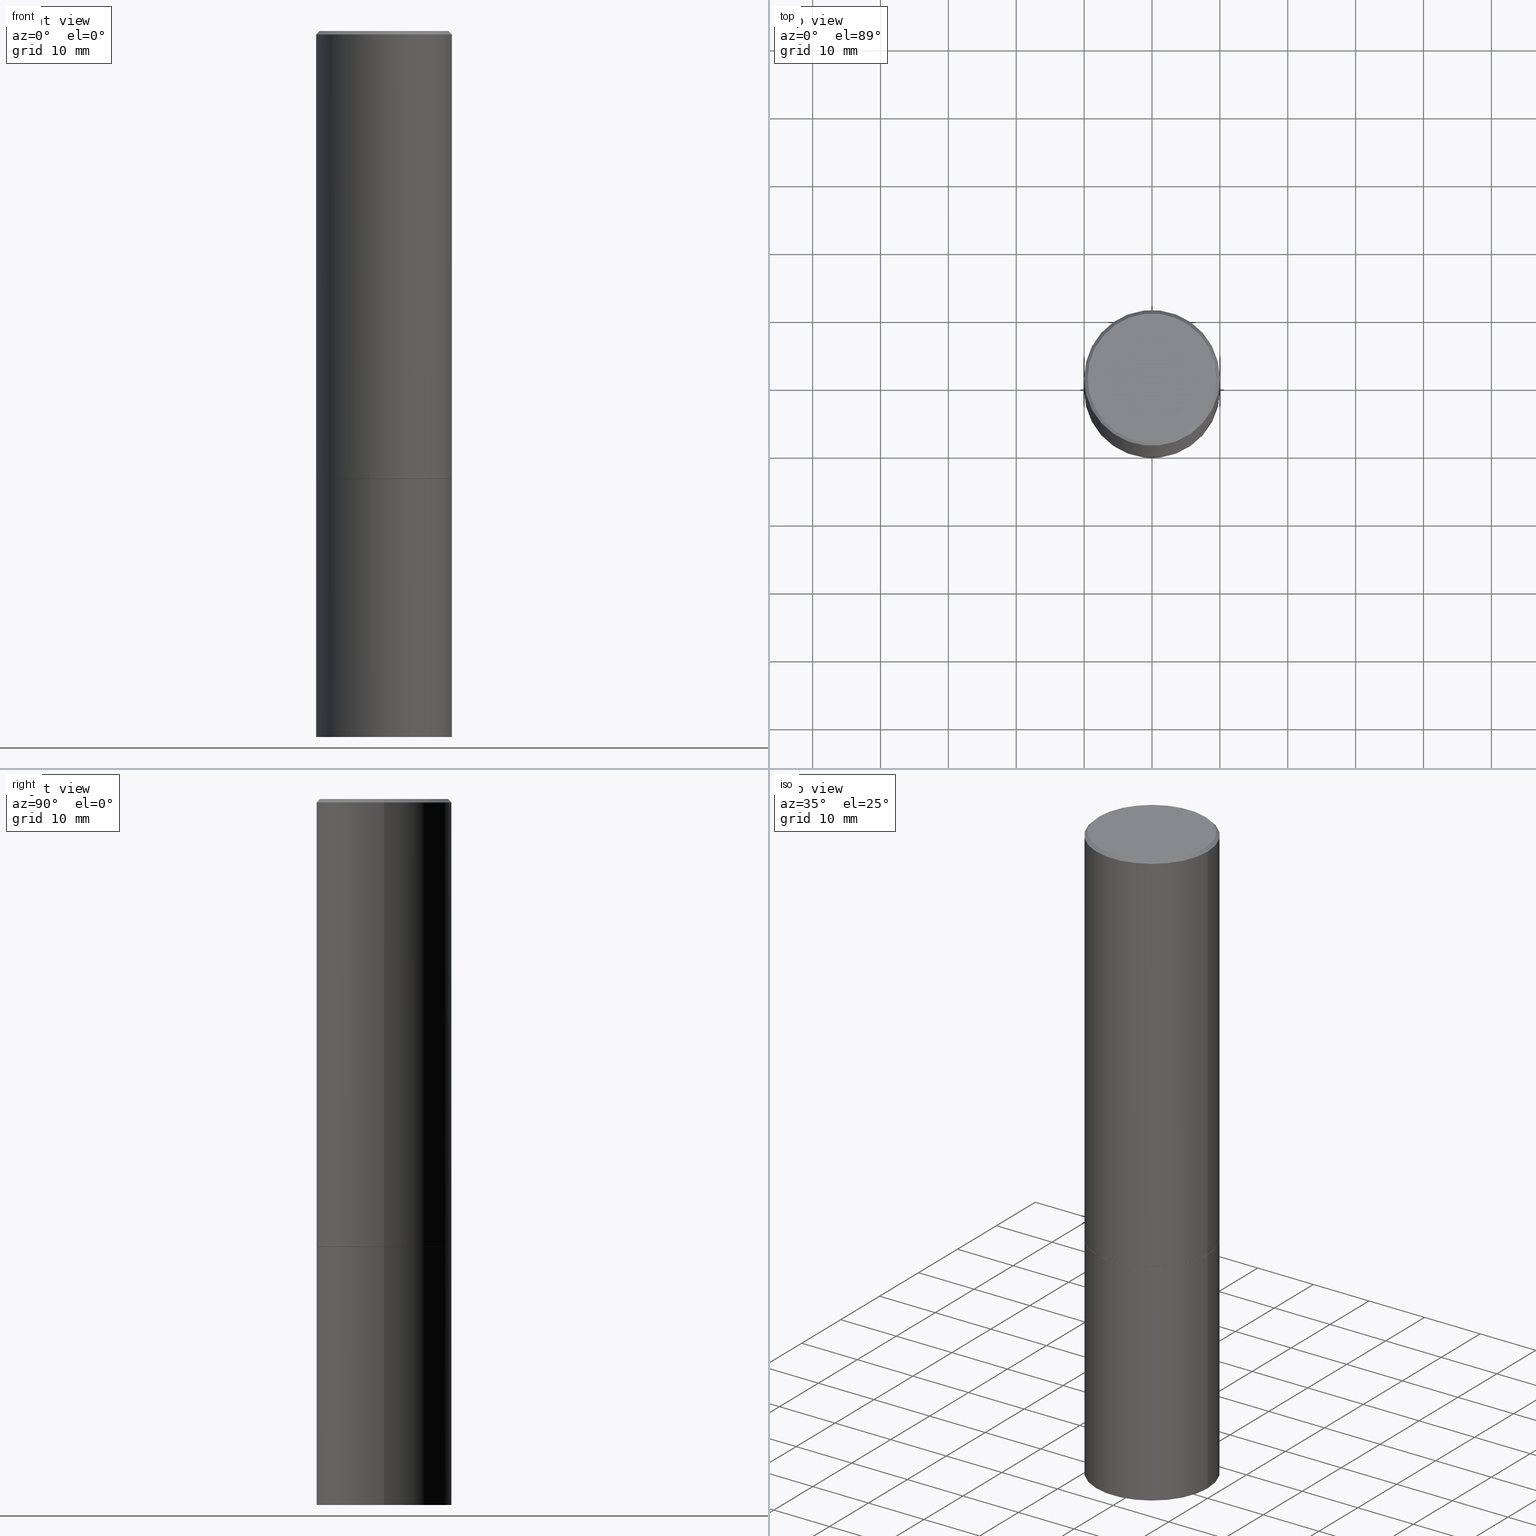
[diagram: canonical four-view strip — front | top / right | iso, engineering-drawing reading convention]
A machine part, canonical four-view strip (front | top / right | iso — engineering-drawing reading convention). The complete STEP part file that produces these views, byte-faithful:
ISO-10303-21;
HEADER;
FILE_DESCRIPTION (( 'STEP AP203' ),
    '1' );
FILE_NAME ('45500.STEP',
    '2024-02-28T10:00:57',
    ( '' ),
    ( '' ),
    'SwSTEP 2.0',
    'SolidWorks 2023',
    '' );
FILE_SCHEMA (( 'CONFIG_CONTROL_DESIGN' ));
ENDSEC;

DATA;
#1 = FACE_OUTER_BOUND ( 'NONE', #214, .T. ) ;
#2 = ADVANCED_FACE ( 'NONE', ( #48 ), #5, .T. ) ;
#3 = VECTOR ( 'NONE', #78, 39.37007874015748143 ) ;
#4 = DIRECTION ( 'NONE',  ( -1.000000000000000000, 6.982962677686265922E-15, -4.876176775795935793E-29 ) ) ;
#5 = CYLINDRICAL_SURFACE ( 'NONE', #338, 0.3937000000000000499 ) ;
#6 = CARTESIAN_POINT ( 'NONE',  ( 0.000000000000000000, 0.000000000000000000, 0.000000000000000000 ) ) ;
#7 = CC_DESIGN_DATE_AND_TIME_ASSIGNMENT ( #116, #31, ( #220 ) ) ;
#8 = CONICAL_SURFACE ( 'NONE', #310, 0.3926999999999999935, 0.7853981633980972044 ) ;
#9 = DIRECTION ( 'NONE',  ( -0.7071067811865466846, 2.468850131082247989E-15, -0.7071067811865483499 ) ) ;
#10 = VERTEX_POINT ( 'NONE', #152 ) ;
#11 = MECHANICAL_CONTEXT ( 'NONE', #353, 'mechanical' ) ;
#12 = DIRECTION ( 'NONE',  ( -2.445468806185136597E-29, 3.491481338843145583E-15, 1.000000000000000000 ) ) ;
#13 = DIRECTION ( 'NONE',  ( 1.000000000000000000, -6.982962677686265922E-15, 4.876176775795935793E-29 ) ) ;
#14 = EDGE_CURVE ( 'NONE', #320, #329, #333, .T. ) ;
#15 = DIRECTION ( 'NONE',  ( 2.445468806185136597E-29, -3.491481338843145583E-15, -1.000000000000000000 ) ) ;
#16 = CARTESIAN_POINT ( 'NONE',  ( 4.890937612370298557E-31, -6.982962677686327354E-17, -0.02000000000000010103 ) ) ;
#17 = APPROVAL ( #204, 'UNSPECIFIED' ) ;
#18 = AXIS2_PLACEMENT_3D ( 'NONE', #238, #50, #163 ) ;
#19 = CARTESIAN_POINT ( 'NONE',  ( -0.3937000000000000499, -8.886660975684131482E-15, -4.094500000000000028 ) ) ;
#20 = ORIENTED_EDGE ( 'NONE', *, *, #274, .T. ) ;
#21 = ADVANCED_FACE ( 'NONE', ( #69 ), #327, .T. ) ;
#22 = ADVANCED_FACE ( 'NONE', ( #223 ), #229, .F. ) ;
#23 = CARTESIAN_POINT ( 'NONE',  ( 0.000000000000000000, 0.000000000000000000, 0.000000000000000000 ) ) ;
#24 = AXIS2_PLACEMENT_3D ( 'NONE', #16, #133, #105 ) ;
#25 = CONICAL_SURFACE ( 'NONE', #195, 0.3926999999999999935, 0.7853981633980972044 ) ;
#26 = DATE_AND_TIME ( #81, #59 ) ;
#27 = ORIENTED_EDGE ( 'NONE', *, *, #75, .F. ) ;
#28 = ADVANCED_FACE ( 'NONE', ( #192 ), #46, .T. ) ;
#29 = PERSON_AND_ORGANIZATION_ROLE ( 'creator' ) ;
#30 = VERTEX_POINT ( 'NONE', #287 ) ;
#31 = DATE_TIME_ROLE ( 'classification_date' ) ;
#32 = EDGE_LOOP ( 'NONE', ( #42, #56 ) ) ;
#33 = VERTEX_POINT ( 'NONE', #111 ) ;
#34 = CARTESIAN_POINT ( 'NONE',  ( 6.351860677185276395E-29, -9.068773629511191193E-15, -2.597400000000001263 ) ) ;
#35 = CARTESIAN_POINT ( 'NONE',  ( 6.354306145991457514E-29, -9.072265110850029467E-15, -2.598399999999999821 ) ) ;
#36 = LOCAL_TIME ( 5, 0, 57.00000000000000000, #110 ) ;
#37 = EDGE_CURVE ( 'NONE', #177, #131, #101, .T. ) ;
#38 = DIRECTION ( 'NONE',  ( -1.000000000000000000, 6.982962677686265922E-15, -4.876176775795935793E-29 ) ) ;
#39 = DIRECTION ( 'NONE',  ( -1.000000000000000000, 6.982962677686266711E-15, 0.000000000000000000 ) ) ;
#40 = CC_DESIGN_SECURITY_CLASSIFICATION ( #220, ( #103 ) ) ;
#41 = CARTESIAN_POINT ( 'NONE',  ( 0.000000000000000000, 0.000000000000000000, 0.000000000000000000 ) ) ;
#42 = ORIENTED_EDGE ( 'NONE', *, *, #37, .T. ) ;
#43 = DIRECTION ( 'NONE',  ( -2.445468806185136877E-29, 3.491481338843145188E-15, 1.000000000000000000 ) ) ;
#44 = EDGE_CURVE ( 'NONE', #33, #10, #89, .T. ) ;
#45 = LINE ( 'NONE', #237, #248 ) ;
#46 = CYLINDRICAL_SURFACE ( 'NONE', #129, 0.3936999999999998279 ) ;
#47 = DIRECTION ( 'NONE',  ( -2.445468806185136597E-29, 3.491481338843145583E-15, 1.000000000000000000 ) ) ;
#48 = FACE_OUTER_BOUND ( 'NONE', #269, .T. ) ;
#49 = DIRECTION ( 'NONE',  ( 1.000000000000000000, -6.982962677686266711E-15, 4.876176775795935793E-29 ) ) ;
#50 = DIRECTION ( 'NONE',  ( -2.445468806185136597E-29, 3.491481338843145583E-15, 1.000000000000000000 ) ) ;
#51 = PERSON_AND_ORGANIZATION ( #224, #260 ) ;
#52 = AXIS2_PLACEMENT_3D ( 'NONE', #258, #311, #283 ) ;
#53 = PERSON_AND_ORGANIZATION_ROLE ( 'design_supplier' ) ;
#54 = EDGE_LOOP ( 'NONE', ( #58, #159, #146, #272 ) ) ;
#55 = COORDINATED_UNIVERSAL_TIME_OFFSET ( 5, 0, .BEHIND. ) ;
#56 = ORIENTED_EDGE ( 'NONE', *, *, #345, .T. ) ;
#57 = DATE_AND_TIME ( #176, #36 ) ;
#58 = ORIENTED_EDGE ( 'NONE', *, *, #284, .F. ) ;
#59 = LOCAL_TIME ( 5, 0, 57.00000000000000000, #174 ) ;
#60 = AXIS2_PLACEMENT_3D ( 'NONE', #77, #323, #352 ) ;
#61 = ORIENTED_EDGE ( 'NONE', *, *, #270, .F. ) ;
#62 = CARTESIAN_POINT ( 'NONE',  ( 0.3937000000000000499, -1.182145751705511584E-14, -2.598400000000000265 ) ) ;
#63 = DIMENSIONAL_EXPONENTS ( 1.000000000000000000, 0.000000000000000000, 0.000000000000000000, 0.000000000000000000, 0.000000000000000000, 0.000000000000000000, 0.000000000000000000 ) ;
#64 = CARTESIAN_POINT ( 'NONE',  ( -0.3736999999999996436, 2.644447966039786297E-15, 8.537024980182450727E-18 ) ) ;
#65 = DIRECTION ( 'NONE',  ( -2.445468806185136597E-29, 3.491481338843145583E-15, 1.000000000000000000 ) ) ;
#66 = CC_DESIGN_PERSON_AND_ORGANIZATION_ASSIGNMENT ( #198, #29, ( #103 ) ) ;
#67 = DIRECTION ( 'NONE',  ( -2.438088387897960049E-29, 3.491481338843145188E-15, 1.000000000000000000 ) ) ;
#68 = AXIS2_PLACEMENT_3D ( 'NONE', #130, #65, #340 ) ;
#69 = FACE_OUTER_BOUND ( 'NONE', #354, .T. ) ;
#70 = CIRCLE ( 'NONE', #60, 0.3937000000000000499 ) ;
#71 = CARTESIAN_POINT ( 'NONE',  ( -2.087702828670439639E-46, 2.980686340760894400E-32, 8.537024980200822558E-18 ) ) ;
#72 = PLANE ( 'NONE',  #179 ) ;
#73 = EDGE_CURVE ( 'NONE', #113, #33, #241, .T. ) ;
#74 =( NAMED_UNIT ( * ) SI_UNIT ( $, .STERADIAN. ) SOLID_ANGLE_UNIT ( ) );
#75 = EDGE_CURVE ( 'NONE', #329, #320, #324, .T. ) ;
#76 = DIRECTION ( 'NONE',  ( -2.445468806185136597E-29, 3.491481338843145583E-15, 1.000000000000000000 ) ) ;
#77 = CARTESIAN_POINT ( 'NONE',  ( 6.354306145991459756E-29, -9.072265110850031044E-15, -2.598400000000000265 ) ) ;
#78 = DIRECTION ( 'NONE',  ( -2.445468806185136877E-29, 3.491481338843145188E-15, 1.000000000000000000 ) ) ;
#79 = DIRECTION ( 'NONE',  ( -1.000000000000000000, 6.982962677686265922E-15, -4.876176775795935793E-29 ) ) ;
#80 = EDGE_CURVE ( 'NONE', #166, #201, #188, .T. ) ;
#81 = CALENDAR_DATE ( 2024, 28, 2 ) ;
#82 = APPLICATION_PROTOCOL_DEFINITION ( 'international standard', 'config_control_design', 1994, #315 ) ;
#83 = ADVANCED_FACE ( 'NONE', ( #183 ), #344, .F. ) ;
#84 = ORIENTED_EDGE ( 'NONE', *, *, #14, .T. ) ;
#85 = ADVANCED_BREP_SHAPE_REPRESENTATION ( '45500', ( #217, #322, #173 ), #136 ) ;
#86 = EDGE_CURVE ( 'NONE', #30, #113, #181, .T. ) ;
#87 = APPROVAL_DATE_TIME ( #230, #234 ) ;
#88 = EDGE_LOOP ( 'NONE', ( #301, #364, #168, #206 ) ) ;
#89 = CIRCLE ( 'NONE', #24, 0.3936999999999996613 ) ;
#90 = COORDINATED_UNIVERSAL_TIME_OFFSET ( 5, 0, .BEHIND. ) ;
#91 = ORIENTED_EDGE ( 'NONE', *, *, #339, .T. ) ;
#92 = PRODUCT_DEFINITION_SHAPE ( 'NONE', 'NONE',  #115 ) ;
#93 = SHAPE_DEFINITION_REPRESENTATION ( #92, #85 ) ;
#94 = EDGE_CURVE ( 'NONE', #10, #33, #218, .T. ) ;
#95 = EDGE_CURVE ( 'NONE', #276, #10, #341, .T. ) ;
#96 = EDGE_LOOP ( 'NONE', ( #84, #222, #249, #144 ) ) ;
#97 = CARTESIAN_POINT ( 'NONE',  ( -0.3937000000000000499, 2.797406750687514786E-15, -1.936584745033356735E-29 ) ) ;
#98 = EDGE_CURVE ( 'NONE', #30, #166, #292, .T. ) ;
#99 = CARTESIAN_POINT ( 'NONE',  ( -0.3926999999999999935, -6.276665333171897231E-15, -2.598399999999999821 ) ) ;
#100 = DIRECTION ( 'NONE',  ( 2.438088387897960049E-29, -3.491481338843145188E-15, -1.000000000000000000 ) ) ;
#101 = CIRCLE ( 'NONE', #18, 0.3937000000000000499 ) ;
#102 = DIRECTION ( 'NONE',  ( -2.445468806185136597E-29, 3.491481338843145583E-15, 1.000000000000000000 ) ) ;
#103 = PRODUCT_DEFINITION_FORMATION_WITH_SPECIFIED_SOURCE ( 'ANY', '', #124, .NOT_KNOWN. ) ;
#104 = DIRECTION ( 'NONE',  ( -2.445468806185136597E-29, 3.491481338843145583E-15, 1.000000000000000000 ) ) ;
#105 = DIRECTION ( 'NONE',  ( 1.000000000000000000, -6.982962677686266711E-15, 0.000000000000000000 ) ) ;
#106 = PRODUCT_RELATED_PRODUCT_CATEGORY ( 'detail', '', ( #124 ) ) ;
#107 = DIRECTION ( 'NONE',  ( 0.000000000000000000, 0.000000000000000000, 1.000000000000000000 ) ) ;
#108 = CARTESIAN_POINT ( 'NONE',  ( 1.001297202692504215E-28, -1.429587034189326149E-14, -4.094500000000000028 ) ) ;
#109 = CIRCLE ( 'NONE', #141, 0.3736999999999996436 ) ;
#110 = COORDINATED_UNIVERSAL_TIME_OFFSET ( 5, 0, .BEHIND. ) ;
#111 = CARTESIAN_POINT ( 'NONE',  ( 0.3936999999999996613, -2.770807688499512973E-15, -0.02000000000000010103 ) ) ;
#112 = EDGE_CURVE ( 'NONE', #320, #177, #281, .T. ) ;
#113 = VERTEX_POINT ( 'NONE', #342 ) ;
#114 = UNCERTAINTY_MEASURE_WITH_UNIT (LENGTH_MEASURE( 1.000000000000000082E-05 ), #290, 'distance_accuracy_value', 'NONE');
#115 = PRODUCT_DEFINITION ( 'UNKNOWN', '', #103, #171 ) ;
#116 = DATE_AND_TIME ( #271, #259 ) ;
#117 = ORIENTED_EDGE ( 'NONE', *, *, #142, .F. ) ;
#118 = DIRECTION ( 'NONE',  ( 1.000000000000000000, -6.982962677686266711E-15, 4.876176775795935793E-29 ) ) ;
#119 = APPROVAL_ROLE ( '' ) ;
#120 = VERTEX_POINT ( 'NONE', #153 ) ;
#121 = CC_DESIGN_APPROVAL ( #234, ( #220 ) ) ;
#122 = DATE_TIME_ROLE ( 'creation_date' ) ;
#123 = ORIENTED_EDGE ( 'NONE', *, *, #98, .F. ) ;
#124 = PRODUCT ( '45500', '45500', '', ( #11 ) ) ;
#125 = DIRECTION ( 'NONE',  ( 1.000000000000000000, -6.982962677686267499E-15, 0.000000000000000000 ) ) ;
#126 = EDGE_CURVE ( 'NONE', #166, #30, #231, .T. ) ;
#127 = CARTESIAN_POINT ( 'NONE',  ( -0.3937000000000000499, -8.886660975684131482E-15, -2.598400000000000265 ) ) ;
#128 = DIRECTION ( 'NONE',  ( 1.000000000000000000, -6.982962677686265922E-15, 4.876176775795935793E-29 ) ) ;
#129 = AXIS2_PLACEMENT_3D ( 'NONE', #23, #12, #49 ) ;
#130 = CARTESIAN_POINT ( 'NONE',  ( 6.351860677185276395E-29, -9.068773629511191193E-15, -2.597400000000001263 ) ) ;
#131 = VERTEX_POINT ( 'NONE', #127 ) ;
#132 = CARTESIAN_POINT ( 'NONE',  ( 4.890937612370298557E-31, -6.982962677686327354E-17, -0.02000000000000010103 ) ) ;
#133 = DIRECTION ( 'NONE',  ( -2.445468806185136597E-29, 3.491481338843145583E-15, 1.000000000000000000 ) ) ;
#134 = APPROVAL ( #358, 'UNSPECIFIED' ) ;
#135 = VECTOR ( 'NONE', #9, 39.37007874015748143 ) ;
#136 =( GEOMETRIC_REPRESENTATION_CONTEXT ( 3 ) GLOBAL_UNCERTAINTY_ASSIGNED_CONTEXT ( ( #114 ) ) GLOBAL_UNIT_ASSIGNED_CONTEXT ( ( #290, #347, #74 ) ) REPRESENTATION_CONTEXT ( 'NONE', 'WORKASPACE' ) );
#137 = EDGE_CURVE ( 'NONE', #201, #113, #156, .T. ) ;
#138 = LENGTH_MEASURE_WITH_UNIT ( LENGTH_MEASURE( 0.02539999999999999897 ), #215 );
#139 = CALENDAR_DATE ( 2024, 28, 2 ) ;
#140 = DIRECTION ( 'NONE',  ( 1.000000000000000000, -6.982962677686267499E-15, 0.000000000000000000 ) ) ;
#141 = AXIS2_PLACEMENT_3D ( 'NONE', #158, #318, #162 ) ;
#142 = EDGE_CURVE ( 'NONE', #329, #131, #233, .T. ) ;
#143 = PERSON_AND_ORGANIZATION ( #224, #260 ) ;
#144 = ORIENTED_EDGE ( 'NONE', *, *, #112, .F. ) ;
#145 = PERSON_AND_ORGANIZATION_ROLE ( 'creator' ) ;
#146 = ORIENTED_EDGE ( 'NONE', *, *, #73, .T. ) ;
#147 = ORIENTED_EDGE ( 'NONE', *, *, #44, .T. ) ;
#148 = ORIENTED_EDGE ( 'NONE', *, *, #270, .T. ) ;
#149 = DIRECTION ( 'NONE',  ( -2.445468806185136597E-29, 3.491481338843145583E-15, 1.000000000000000000 ) ) ;
#150 = CARTESIAN_POINT ( 'NONE',  ( 6.354306145991457514E-29, -9.072265110850029467E-15, -2.598399999999999821 ) ) ;
#151 = CC_DESIGN_APPROVAL ( #17, ( #115 ) ) ;
#152 = CARTESIAN_POINT ( 'NONE',  ( -0.3936999999999996613, 2.679362779428217552E-15, -0.02000000000000010103 ) ) ;
#153 = CARTESIAN_POINT ( 'NONE',  ( 0.3736999999999996436, -2.667287895133365992E-15, 8.537024980219274507E-18 ) ) ;
#154 = DIRECTION ( 'NONE',  ( -2.445468806185136597E-29, 3.491481338843145583E-15, 1.000000000000000000 ) ) ;
#155 = DIRECTION ( 'NONE',  ( -2.445468806185136597E-29, 3.491481338843145583E-15, 1.000000000000000000 ) ) ;
#156 = CIRCLE ( 'NONE', #68, 0.3937000000000000499 ) ;
#157 = CARTESIAN_POINT ( 'NONE',  ( 1.001297202692504215E-28, -1.429587034189326149E-14, -4.094500000000000028 ) ) ;
#158 = CARTESIAN_POINT ( 'NONE',  ( -2.087702828670439639E-46, 2.980686340760894400E-32, 8.537024980200822558E-18 ) ) ;
#159 = ORIENTED_EDGE ( 'NONE', *, *, #137, .T. ) ;
#160 = FACE_OUTER_BOUND ( 'NONE', #32, .T. ) ;
#161 = EDGE_LOOP ( 'NONE', ( #123, #246 ) ) ;
#162 = DIRECTION ( 'NONE',  ( 1.000000000000000000, -6.982962677686266711E-15, 4.876212485538980163E-29 ) ) ;
#163 = DIRECTION ( 'NONE',  ( 1.000000000000000000, -6.982962677686267499E-15, 0.000000000000000000 ) ) ;
#164 = ADVANCED_FACE ( 'NONE', ( #1 ), #72, .T. ) ;
#165 = CONICAL_SURFACE ( 'NONE', #298, 0.3936999999999996613, 0.7853981633974471688 ) ;
#166 = VERTEX_POINT ( 'NONE', #99 ) ;
#167 = PLANE ( 'NONE',  #200 ) ;
#168 = ORIENTED_EDGE ( 'NONE', *, *, #274, .F. ) ;
#169 = FACE_OUTER_BOUND ( 'NONE', #175, .T. ) ;
#170 = DIRECTION ( 'NONE',  ( -2.445468806185136597E-29, 3.491481338843145583E-15, 1.000000000000000000 ) ) ;
#171 = DESIGN_CONTEXT ( 'detailed design', #315, 'design' ) ;
#172 = CLOSED_SHELL ( 'NONE', ( #295, #21, #266, #319, #28, #366, #22, #83 ) ) ;
#173 = AXIS2_PLACEMENT_3D ( 'NONE', #41, #107, #190 ) ;
#174 = COORDINATED_UNIVERSAL_TIME_OFFSET ( 5, 0, .BEHIND. ) ;
#175 = EDGE_LOOP ( 'NONE', ( #180, #286, #360, #297 ) ) ;
#176 = CALENDAR_DATE ( 2024, 28, 2 ) ;
#177 = VERTEX_POINT ( 'NONE', #62 ) ;
#178 = APPROVAL_DATE_TIME ( #57, #134 ) ;
#179 = AXIS2_PLACEMENT_3D ( 'NONE', #255, #100, #38 ) ;
#180 = ORIENTED_EDGE ( 'NONE', *, *, #339, .F. ) ;
#181 = LINE ( 'NONE', #213, #247 ) ;
#182 = CC_DESIGN_PERSON_AND_ORGANIZATION_ASSIGNMENT ( #317, #303, ( #124 ) ) ;
#183 = FACE_OUTER_BOUND ( 'NONE', #332, .T. ) ;
#184 = AXIS2_PLACEMENT_3D ( 'NONE', #330, #67, #291 ) ;
#185 = DIRECTION ( 'NONE',  ( 2.438088387897960049E-29, -3.491481338843145188E-15, -1.000000000000000000 ) ) ;
#186 = CARTESIAN_POINT ( 'NONE',  ( 4.890937612370298557E-31, -6.982962677686327354E-17, -0.02000000000000010103 ) ) ;
#187 = DIRECTION ( 'NONE',  ( -1.000000000000000000, 6.982962677686266711E-15, 0.000000000000000000 ) ) ;
#188 = LINE ( 'NONE', #365, #219 ) ;
#189 = AXIS2_PLACEMENT_3D ( 'NONE', #157, #210, #254 ) ;
#190 = DIRECTION ( 'NONE',  ( 1.000000000000000000, 0.000000000000000000, 0.000000000000000000 ) ) ;
#191 = CC_DESIGN_DATE_AND_TIME_ASSIGNMENT ( #26, #122, ( #115 ) ) ;
#192 = FACE_OUTER_BOUND ( 'NONE', #54, .T. ) ;
#193 = CARTESIAN_POINT ( 'NONE',  ( 2.749192406205146325E-15, 0.3936999999999909461, -2.598400000000002041 ) ) ;
#194 = AXIS2_PLACEMENT_3D ( 'NONE', #6, #154, #128 ) ;
#195 = AXIS2_PLACEMENT_3D ( 'NONE', #196, #76, #321 ) ;
#196 = CARTESIAN_POINT ( 'NONE',  ( 6.354306145991457514E-29, -9.072265110850029467E-15, -2.598399999999999821 ) ) ;
#197 = CARTESIAN_POINT ( 'NONE',  ( 0.000000000000000000, 0.000000000000000000, 0.000000000000000000 ) ) ;
#198 = PERSON_AND_ORGANIZATION ( #224, #260 ) ;
#199 = ORIENTED_EDGE ( 'NONE', *, *, #112, .T. ) ;
#200 = AXIS2_PLACEMENT_3D ( 'NONE', #193, #262, #79 ) ;
#201 = VERTEX_POINT ( 'NONE', #211 ) ;
#202 = ADVANCED_FACE ( 'NONE', ( #307 ), #280, .T. ) ;
#203 = PERSON_AND_ORGANIZATION ( #224, #260 ) ;
#204 = APPROVAL_STATUS ( 'not_yet_approved' ) ;
#205 = CIRCLE ( 'NONE', #357, 0.3736999999999996436 ) ;
#206 = ORIENTED_EDGE ( 'NONE', *, *, #86, .F. ) ;
#207 = CONICAL_SURFACE ( 'NONE', #293, 0.3936999999999996613, 0.7853981633974471688 ) ;
#208 = DIRECTION ( 'NONE',  ( -2.445468806185136877E-29, 3.491481338843145188E-15, 1.000000000000000000 ) ) ;
#209 = CARTESIAN_POINT ( 'NONE',  ( 0.3937000000000000499, -2.749192406205083217E-15, 1.919750796630860172E-29 ) ) ;
#210 = DIRECTION ( 'NONE',  ( -2.445468806185136597E-29, 3.491481338843145583E-15, 1.000000000000000000 ) ) ;
#211 = CARTESIAN_POINT ( 'NONE',  ( -0.3937000000000000499, -1.771894877456511079E-15, -2.597400000000001263 ) ) ;
#212 = AXIS2_PLACEMENT_3D ( 'NONE', #197, #47, #118 ) ;
#213 = CARTESIAN_POINT ( 'NONE',  ( 0.3926999999999999935, -1.181447455437742667E-14, -2.598399999999999821 ) ) ;
#214 = EDGE_LOOP ( 'NONE', ( #289, #27 ) ) ;
#215 =( LENGTH_UNIT ( ) NAMED_UNIT ( * ) SI_UNIT ( $, .METRE. ) );
#216 = LINE ( 'NONE', #236, #361 ) ;
#217 = MANIFOLD_SOLID_BREP ( 'Body-Move/Copy2[1]', #257 ) ;
#218 = CIRCLE ( 'NONE', #52, 0.3936999999999996613 ) ;
#219 = VECTOR ( 'NONE', #277, 39.37007874015748143 ) ;
#220 = SECURITY_CLASSIFICATION ( '', '', #331 ) ;
#221 = PERSON_AND_ORGANIZATION_ROLE ( 'classification_officer' ) ;
#222 = ORIENTED_EDGE ( 'NONE', *, *, #142, .T. ) ;
#223 = FACE_OUTER_BOUND ( 'NONE', #161, .T. ) ;
#224 = PERSON ( 'UNSPECIFIED', 'UNSPECIFIED', 'UNSPECIFIED', ('UNSPECIFIED'), ('UNSPECIFIED'), ('UNSPECIFIED') ) ;
#225 = COORDINATED_UNIVERSAL_TIME_OFFSET ( 5, 0, .BEHIND. ) ;
#226 = ORIENTED_EDGE ( 'NONE', *, *, #326, .T. ) ;
#227 = AXIS2_PLACEMENT_3D ( 'NONE', #35, #102, #308 ) ;
#228 = ORIENTED_EDGE ( 'NONE', *, *, #95, .F. ) ;
#229 = PLANE ( 'NONE',  #184 ) ;
#230 = DATE_AND_TIME ( #139, #325 ) ;
#231 = CIRCLE ( 'NONE', #252, 0.3926999999999999935 ) ;
#232 = DIRECTION ( 'NONE',  ( 0.7071067811870063169, -2.468850131087062801E-15, 0.7071067811860887176 ) ) ;
#233 = LINE ( 'NONE', #97, #343 ) ;
#234 = APPROVAL ( #328, 'UNSPECIFIED' ) ;
#235 = DIRECTION ( 'NONE',  ( 2.445468806185136597E-29, -3.491481338843145583E-15, -1.000000000000000000 ) ) ;
#236 = CARTESIAN_POINT ( 'NONE',  ( -0.3936999999999998279, 2.797406750687513209E-15, -1.936584745033355614E-29 ) ) ;
#237 = CARTESIAN_POINT ( 'NONE',  ( 0.3936999999999996613, -2.770807688499512973E-15, -0.02000000000000010103 ) ) ;
#238 = CARTESIAN_POINT ( 'NONE',  ( 6.354306145991459756E-29, -9.072265110850031044E-15, -2.598400000000000265 ) ) ;
#239 = ORIENTED_EDGE ( 'NONE', *, *, #137, .F. ) ;
#240 = CARTESIAN_POINT ( 'NONE',  ( 0.3937000000000000499, -1.704506274809834471E-14, -4.094500000000000028 ) ) ;
#241 = LINE ( 'NONE', #356, #3 ) ;
#242 = APPROVAL_PERSON_ORGANIZATION ( #294, #17, #300 ) ;
#243 = PERSON_AND_ORGANIZATION ( #224, #260 ) ;
#244 = ORIENTED_EDGE ( 'NONE', *, *, #73, .F. ) ;
#245 = CC_DESIGN_PERSON_AND_ORGANIZATION_ASSIGNMENT ( #334, #145, ( #115 ) ) ;
#246 = ORIENTED_EDGE ( 'NONE', *, *, #126, .F. ) ;
#247 = VECTOR ( 'NONE', #232, 39.37007874015748143 ) ;
#248 = VECTOR ( 'NONE', #349, 39.37007874015748143 ) ;
#249 = ORIENTED_EDGE ( 'NONE', *, *, #37, .F. ) ;
#250 = EDGE_LOOP ( 'NONE', ( #61, #91, #147, #228 ) ) ;
#251 = FACE_OUTER_BOUND ( 'NONE', #250, .T. ) ;
#252 = AXIS2_PLACEMENT_3D ( 'NONE', #150, #312, #253 ) ;
#253 = DIRECTION ( 'NONE',  ( 1.000000000000000000, -6.982962677686265133E-15, 0.000000000000000000 ) ) ;
#254 = DIRECTION ( 'NONE',  ( 1.000000000000000000, -6.982962677686267499E-15, 0.000000000000000000 ) ) ;
#255 = CARTESIAN_POINT ( 'NONE',  ( 2.749192406205183007E-15, 0.3936999999999857280, -4.094500000000001805 ) ) ;
#256 = DIRECTION ( 'NONE',  ( 1.000000000000000000, -6.982962677686266711E-15, 4.876212485538980163E-29 ) ) ;
#257 = CLOSED_SHELL ( 'NONE', ( #202, #164, #313, #2 ) ) ;
#258 = CARTESIAN_POINT ( 'NONE',  ( 4.890937612370298557E-31, -6.982962677686327354E-17, -0.02000000000000010103 ) ) ;
#259 = LOCAL_TIME ( 5, 0, 57.00000000000000000, #225 ) ;
#260 = ORGANIZATION ( 'UNSPECIFIED', 'UNSPECIFIED', '' ) ;
#261 = CARTESIAN_POINT ( 'NONE',  ( 6.354306145991457514E-29, -9.072265110850029467E-15, -2.598399999999999821 ) ) ;
#262 = DIRECTION ( 'NONE',  ( 2.438088387897960049E-29, -3.491481338843145188E-15, -1.000000000000000000 ) ) ;
#263 = AXIS2_PLACEMENT_3D ( 'NONE', #108, #170, #140 ) ;
#264 = DIRECTION ( 'NONE',  ( 1.000000000000000000, -6.982962677686265133E-15, 0.000000000000000000 ) ) ;
#265 = FACE_OUTER_BOUND ( 'NONE', #285, .T. ) ;
#266 = ADVANCED_FACE ( 'NONE', ( #251 ), #165, .T. ) ;
#267 = APPROVAL_PERSON_ORGANIZATION ( #203, #234, #119 ) ;
#268 = CALENDAR_DATE ( 2024, 28, 2 ) ;
#269 = EDGE_LOOP ( 'NONE', ( #117, #351, #199, #302 ) ) ;
#270 = EDGE_CURVE ( 'NONE', #120, #276, #205, .T. ) ;
#271 = CALENDAR_DATE ( 2024, 28, 2 ) ;
#272 = ORIENTED_EDGE ( 'NONE', *, *, #94, .F. ) ;
#273 = ORIENTED_EDGE ( 'NONE', *, *, #126, .T. ) ;
#274 = EDGE_CURVE ( 'NONE', #113, #201, #316, .T. ) ;
#275 = VECTOR ( 'NONE', #337, 39.37007874015748143 ) ;
#276 = VERTEX_POINT ( 'NONE', #64 ) ;
#277 = DIRECTION ( 'NONE',  ( -0.7071067811870063169, 7.493145998872012346E-15, 0.7071067811860887176 ) ) ;
#278 = CARTESIAN_POINT ( 'NONE',  ( 2.609533152651354648E-15, 0.3736999999999996436, -1.300498063835581828E-15 ) ) ;
#279 = AXIS2_PLACEMENT_3D ( 'NONE', #278, #185, #4 ) ;
#280 = CYLINDRICAL_SURFACE ( 'NONE', #194, 0.3937000000000000499 ) ;
#281 = LINE ( 'NONE', #209, #275 ) ;
#282 = CARTESIAN_POINT ( 'NONE',  ( 0.000000000000000000, 0.000000000000000000, 0.000000000000000000 ) ) ;
#283 = DIRECTION ( 'NONE',  ( 1.000000000000000000, -6.982962677686266711E-15, 0.000000000000000000 ) ) ;
#284 = EDGE_CURVE ( 'NONE', #201, #10, #216, .T. ) ;
#285 = EDGE_LOOP ( 'NONE', ( #304, #273, #348, #239 ) ) ;
#286 = ORIENTED_EDGE ( 'NONE', *, *, #326, .F. ) ;
#287 = CARTESIAN_POINT ( 'NONE',  ( 0.3926999999999999935, -1.181447455437742667E-14, -2.598399999999999821 ) ) ;
#288 = CC_DESIGN_PERSON_AND_ORGANIZATION_ASSIGNMENT ( #243, #221, ( #220 ) ) ;
#289 = ORIENTED_EDGE ( 'NONE', *, *, #14, .F. ) ;
#290 =( CONVERSION_BASED_UNIT ( 'INCH', #138 ) LENGTH_UNIT ( ) NAMED_UNIT ( #63 ) );
#291 = DIRECTION ( 'NONE',  ( 1.000000000000000000, -6.982962677686265922E-15, 4.876176775795935793E-29 ) ) ;
#292 = CIRCLE ( 'NONE', #227, 0.3926999999999999935 ) ;
#293 = AXIS2_PLACEMENT_3D ( 'NONE', #132, #15, #187 ) ;
#294 = PERSON_AND_ORGANIZATION ( #224, #260 ) ;
#295 = ADVANCED_FACE ( 'NONE', ( #355 ), #25, .T. ) ;
#296 = APPROVAL_DATE_TIME ( #363, #17 ) ;
#297 = ORIENTED_EDGE ( 'NONE', *, *, #94, .T. ) ;
#298 = AXIS2_PLACEMENT_3D ( 'NONE', #186, #235, #39 ) ;
#299 = APPROVAL_PERSON_ORGANIZATION ( #143, #134, #336 ) ;
#300 = APPROVAL_ROLE ( '' ) ;
#301 = ORIENTED_EDGE ( 'NONE', *, *, #98, .T. ) ;
#302 = ORIENTED_EDGE ( 'NONE', *, *, #345, .F. ) ;
#303 = PERSON_AND_ORGANIZATION_ROLE ( 'design_owner' ) ;
#304 = ORIENTED_EDGE ( 'NONE', *, *, #80, .F. ) ;
#305 = ORIENTED_EDGE ( 'NONE', *, *, #284, .T. ) ;
#306 = CARTESIAN_POINT ( 'NONE',  ( -0.3936999999999996613, 2.679362779428217552E-15, -0.02000000000000010103 ) ) ;
#307 = FACE_OUTER_BOUND ( 'NONE', #96, .T. ) ;
#308 = DIRECTION ( 'NONE',  ( 1.000000000000000000, -6.982962677686265133E-15, 0.000000000000000000 ) ) ;
#309 = AXIS2_PLACEMENT_3D ( 'NONE', #34, #149, #125 ) ;
#310 = AXIS2_PLACEMENT_3D ( 'NONE', #261, #104, #264 ) ;
#311 = DIRECTION ( 'NONE',  ( -2.445468806185136597E-29, 3.491481338843145583E-15, 1.000000000000000000 ) ) ;
#312 = DIRECTION ( 'NONE',  ( -2.445468806185136597E-29, 3.491481338843145583E-15, 1.000000000000000000 ) ) ;
#313 = ADVANCED_FACE ( 'NONE', ( #160 ), #167, .F. ) ;
#314 = APPLICATION_PROTOCOL_DEFINITION ( 'international standard', 'config_control_design', 1994, #353 ) ;
#315 = APPLICATION_CONTEXT ( 'configuration controlled 3d designs of mechanical parts and assemblies' ) ;
#316 = CIRCLE ( 'NONE', #309, 0.3937000000000000499 ) ;
#317 = PERSON_AND_ORGANIZATION ( #224, #260 ) ;
#318 = DIRECTION ( 'NONE',  ( -2.445468806185136597E-29, 3.491481338843145583E-15, 1.000000000000000000 ) ) ;
#319 = ADVANCED_FACE ( 'NONE', ( #169 ), #207, .T. ) ;
#320 = VERTEX_POINT ( 'NONE', #240 ) ;
#321 = DIRECTION ( 'NONE',  ( 1.000000000000000000, -6.982962677686265133E-15, 0.000000000000000000 ) ) ;
#322 = MANIFOLD_SOLID_BREP ( 'Body-Move/Copy2[2]', #172 ) ;
#323 = DIRECTION ( 'NONE',  ( -2.445468806185136597E-29, 3.491481338843145583E-15, 1.000000000000000000 ) ) ;
#324 = CIRCLE ( 'NONE', #263, 0.3937000000000000499 ) ;
#325 = LOCAL_TIME ( 5, 0, 57.00000000000000000, #90 ) ;
#326 = EDGE_CURVE ( 'NONE', #276, #120, #109, .T. ) ;
#327 = CYLINDRICAL_SURFACE ( 'NONE', #212, 0.3936999999999998279 ) ;
#328 = APPROVAL_STATUS ( 'not_yet_approved' ) ;
#329 = VERTEX_POINT ( 'NONE', #19 ) ;
#330 = CARTESIAN_POINT ( 'NONE',  ( 6.354306145991459756E-29, -9.072265110850031044E-15, -2.598400000000000265 ) ) ;
#331 = SECURITY_CLASSIFICATION_LEVEL ( 'unclassified' ) ;
#332 = EDGE_LOOP ( 'NONE', ( #226, #148 ) ) ;
#333 = CIRCLE ( 'NONE', #189, 0.3937000000000000499 ) ;
#334 = PERSON_AND_ORGANIZATION ( #224, #260 ) ;
#335 = ORIENTED_EDGE ( 'NONE', *, *, #44, .F. ) ;
#336 = APPROVAL_ROLE ( '' ) ;
#337 = DIRECTION ( 'NONE',  ( -2.445468806185136877E-29, 3.491481338843145188E-15, 1.000000000000000000 ) ) ;
#338 = AXIS2_PLACEMENT_3D ( 'NONE', #282, #346, #13 ) ;
#339 = EDGE_CURVE ( 'NONE', #120, #33, #45, .T. ) ;
#340 = DIRECTION ( 'NONE',  ( 1.000000000000000000, -6.982962677686267499E-15, 0.000000000000000000 ) ) ;
#341 = LINE ( 'NONE', #306, #135 ) ;
#342 = CARTESIAN_POINT ( 'NONE',  ( 0.3937000000000000499, -1.181796603571627441E-14, -2.597400000000001263 ) ) ;
#343 = VECTOR ( 'NONE', #208, 39.37007874015748143 ) ;
#344 = PLANE ( 'NONE',  #279 ) ;
#345 = EDGE_CURVE ( 'NONE', #131, #177, #70, .T. ) ;
#346 = DIRECTION ( 'NONE',  ( -2.445468806185136597E-29, 3.491481338843145583E-15, 1.000000000000000000 ) ) ;
#347 =( NAMED_UNIT ( * ) PLANE_ANGLE_UNIT ( ) SI_UNIT ( $, .RADIAN. ) );
#348 = ORIENTED_EDGE ( 'NONE', *, *, #86, .T. ) ;
#349 = DIRECTION ( 'NONE',  ( 0.7071067811865466846, -7.319954787623252890E-15, -0.7071067811865483499 ) ) ;
#350 = LOCAL_TIME ( 5, 0, 57.00000000000000000, #55 ) ;
#351 = ORIENTED_EDGE ( 'NONE', *, *, #75, .T. ) ;
#352 = DIRECTION ( 'NONE',  ( 1.000000000000000000, -6.982962677686267499E-15, 0.000000000000000000 ) ) ;
#353 = APPLICATION_CONTEXT ( 'configuration controlled 3d designs of mechanical parts and assemblies' ) ;
#354 = EDGE_LOOP ( 'NONE', ( #20, #305, #335, #244 ) ) ;
#355 = FACE_OUTER_BOUND ( 'NONE', #88, .T. ) ;
#356 = CARTESIAN_POINT ( 'NONE',  ( 0.3936999999999998279, -2.749192406205082033E-15, 1.919750796630859051E-29 ) ) ;
#357 = AXIS2_PLACEMENT_3D ( 'NONE', #71, #155, #256 ) ;
#358 = APPROVAL_STATUS ( 'not_yet_approved' ) ;
#359 = CC_DESIGN_PERSON_AND_ORGANIZATION_ASSIGNMENT ( #51, #53, ( #103 ) ) ;
#360 = ORIENTED_EDGE ( 'NONE', *, *, #95, .T. ) ;
#361 = VECTOR ( 'NONE', #43, 39.37007874015748143 ) ;
#362 = CC_DESIGN_APPROVAL ( #134, ( #103 ) ) ;
#363 = DATE_AND_TIME ( #268, #350 ) ;
#364 = ORIENTED_EDGE ( 'NONE', *, *, #80, .T. ) ;
#365 = CARTESIAN_POINT ( 'NONE',  ( -0.3926999999999999935, -6.281963787520115688E-15, -2.598399999999999821 ) ) ;
#366 = ADVANCED_FACE ( 'NONE', ( #265 ), #8, .T. ) ;
ENDSEC;
END-ISO-10303-21;
